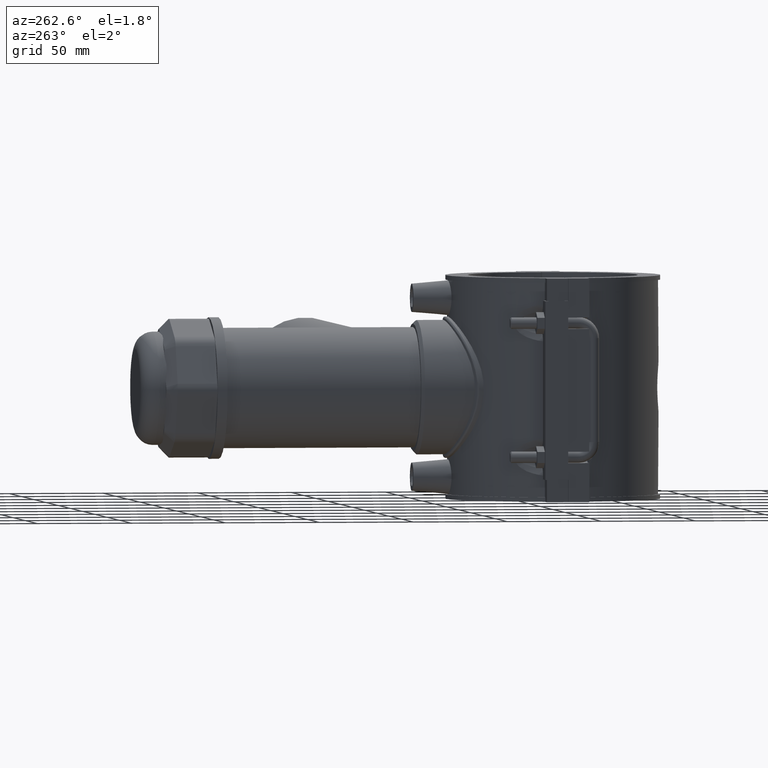
[diagram: clean part render]
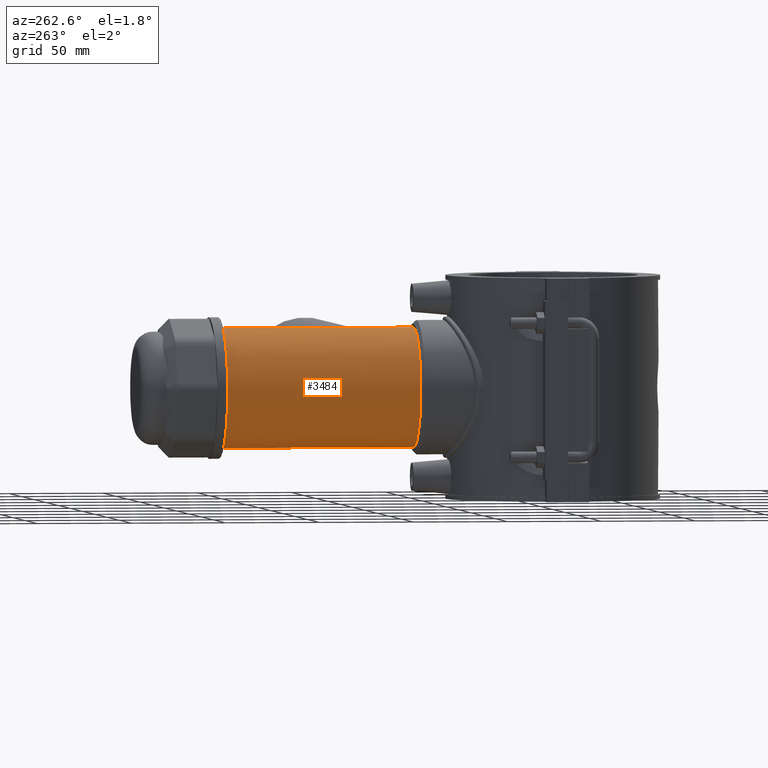
[diagram: same view with one face highlighted and labeled with its STEP entity id]
A machine part, auxiliary view. The second image highlights one B-rep face of the part: STEP entity #3484.
In plain terms, the highlighted cylindrical surface (bore or boss wall) has radius 31.7475 mm, axis along (0, 1, 0).
Its self-contained STEP definition (entity closure, byte-faithful):
#661=FACE_BOUND('',#1108,.T.);
#662=FACE_BOUND('',#1109,.T.);
#711=B_SPLINE_CURVE_WITH_KNOTS('',3,(#5197,#5198,#5199,#5200,#5201,#5202,
#5203,#5204,#5205,#5206,#5207,#5208,#5209,#5210,#5211,#5212,#5213,#5214,
#5215,#5216,#5217,#5218,#5219,#5220,#5221,#5222,#5223,#5224,#5225,#5226,
#5227,#5228,#5229,#5230,#5231,#5232,#5233,#5234,#5235,#5236,#5237,#5238,
#5239,#5240,#5241,#5242,#5243,#5244,#5245,#5246,#5247,#5248,#5249,#5250,
#5251,#5252,#5253,#5254,#5255,#5256,#5257,#5258,#5259,#5260,#5261,#5262,
#5263,#5264,#5265,#5266,#5267,#5268,#5269,#5270,#5271,#5272,#5273,#5274,
#5275,#5276,#5277,#5278,#5279,#5280,#5281,#5282,#5283,#5284,#5285,#5286),
 .UNSPECIFIED.,.T.,.F.,(4,2,2,2,2,2,2,2,2,2,2,2,2,2,2,2,2,2,2,2,2,2,2,2,
2,2,2,2,2,2,2,2,2,2,2,2,2,2,2,2,2,2,2,2,4),(0.,0.104735583560601,0.209471167121201,
0.418942334242402,0.837884668484805,1.67576933696961,2.51365400545441,3.35153867393922,
4.00208035423897,4.65262203453871,5.30316371483846,5.95370539513821,6.60424707543795,
7.2547887557377,7.90533043603744,8.55587211633719,9.39375678482199,10.2316414533068,
11.0695261217916,11.488468456034,11.6979396231552,11.8026752067158,11.9074107902764,
12.012146373837,12.1168819573976,12.3263531245188,12.7452954587612,13.583180127246,
14.4210647957308,15.2589494642156,15.9094911445153,16.5600328248151,17.2105745051148,
17.8611161854146,18.5116578657143,19.1621995460141,19.8127412263138,20.4632829066135,
21.3011675750983,22.1390522435832,22.976936912068,23.3958792463104,23.6053504134316,
23.7100859969922,23.8148215805528),.UNSPECIFIED.);
#788=CYLINDRICAL_SURFACE('',#3747,31.7475);
#884=FACE_OUTER_BOUND('',#1107,.T.);
#1107=EDGE_LOOP('',(#2511));
#1108=EDGE_LOOP('',(#2512));
#1109=EDGE_LOOP('',(#2513));
#1346=CIRCLE('',#3725,31.7475);
#1355=CIRCLE('',#3748,31.7475);
#1448=VERTEX_POINT('',#5196);
#1508=VERTEX_POINT('',#5471);
#1519=VERTEX_POINT('',#5516);
#1786=EDGE_CURVE('',#1448,#1448,#711,.T.);
#1877=EDGE_CURVE('',#1508,#1508,#1346,.T.);
#1897=EDGE_CURVE('',#1519,#1519,#1355,.T.);
#2511=ORIENTED_EDGE('',*,*,#1877,.T.);
#2512=ORIENTED_EDGE('',*,*,#1786,.T.);
#2513=ORIENTED_EDGE('',*,*,#1897,.F.);
#3484=ADVANCED_FACE('',(#884,#661,#662),#788,.T.);
#3725=AXIS2_PLACEMENT_3D('',#5472,#4202,#4203);
#3747=AXIS2_PLACEMENT_3D('',#5515,#4257,#4258);
#3748=AXIS2_PLACEMENT_3D('',#5517,#4259,#4260);
#4202=DIRECTION('center_axis',(0.,1.,3.06161699786838E-16));
#4203=DIRECTION('ref_axis',(1.,0.,0.));
#4257=DIRECTION('center_axis',(0.,1.,3.06161699786838E-16));
#4258=DIRECTION('ref_axis',(0.,0.,1.));
#4259=DIRECTION('center_axis',(0.,1.,3.06161699786838E-16));
#4260=DIRECTION('ref_axis',(1.,0.,0.));
#5196=CARTESIAN_POINT('',(3.95648281305474,109.,-31.5));
#5197=CARTESIAN_POINT('Ctrl Pts',(3.95648281305474,109.,-31.5));
#5198=CARTESIAN_POINT('Ctrl Pts',(3.95648281305474,108.650881388131,-31.5));
#5199=CARTESIAN_POINT('Ctrl Pts',(4.00185955068654,108.333509123218,-31.4943468372757));
#5200=CARTESIAN_POINT('Ctrl Pts',(4.14220008052878,107.740177746267,-31.4761964168777));
#5201=CARTESIAN_POINT('Ctrl Pts',(4.2372888561766,107.464249688265,-31.4636506557807));
#5202=CARTESIAN_POINT('Ctrl Pts',(4.56502765933543,106.672657971312,-31.4183530558806));
#5203=CARTESIAN_POINT('Ctrl Pts',(4.83732224807337,106.193762691143,-31.3782678414901));
#5204=CARTESIAN_POINT('Ctrl Pts',(5.73147397514533,104.790831276999,-31.2316833865625));
#5205=CARTESIAN_POINT('Ctrl Pts',(6.4225760036558,103.916628560852,-31.1005462101374));
#5206=CARTESIAN_POINT('Ctrl Pts',(8.66680315646233,101.225717023618,-30.5802073727426));
#5207=CARTESIAN_POINT('Ctrl Pts',(10.3574483847149,99.4086477261268,-30.0710847886582));
#5208=CARTESIAN_POINT('Ctrl Pts',(13.8856306983245,95.6760329781155,-28.6135651768442));
#5209=CARTESIAN_POINT('Ctrl Pts',(15.7185478636811,93.781900035647,-27.6660284033263));
#5210=CARTESIAN_POINT('Ctrl Pts',(19.2886958379446,90.1168963699779,-25.3066807346343));
#5211=CARTESIAN_POINT('Ctrl Pts',(21.0267142104829,88.3469298816842,-23.8946570964367));
#5212=CARTESIAN_POINT('Ctrl Pts',(23.8615324459055,85.4677368067966,-21.0154640215491));
#5213=CARTESIAN_POINT('Ctrl Pts',(25.0806244742733,84.2328265278443,-19.5638604465081));
#5214=CARTESIAN_POINT('Ctrl Pts',(27.306269795234,81.9813485177867,-16.3141040135259));
#5215=CARTESIAN_POINT('Ctrl Pts',(28.3125949076123,80.9649812721942,-14.5156559974319));
#5216=CARTESIAN_POINT('Ctrl Pts',(29.9768601517874,79.2851655148168,-10.6627961765697));
#5217=CARTESIAN_POINT('Ctrl Pts',(30.6364203792672,78.6200769159234,-8.60342754334021));
#5218=CARTESIAN_POINT('Ctrl Pts',(31.5219210774095,77.7273125339561,-4.35634144978546));
#5219=CARTESIAN_POINT('Ctrl Pts',(31.7475,77.5,-2.16847226766585));
#5220=CARTESIAN_POINT('Ctrl Pts',(31.7475,77.5,2.16847226766579));
#5221=CARTESIAN_POINT('Ctrl Pts',(31.5219210774095,77.7273125339561,4.35634144978538));
#5222=CARTESIAN_POINT('Ctrl Pts',(30.6364203792672,78.6200769159234,8.60342754334013));
#5223=CARTESIAN_POINT('Ctrl Pts',(29.9768601517874,79.2851655148168,10.6627961765696));
#5224=CARTESIAN_POINT('Ctrl Pts',(28.3125949076123,80.9649812721942,14.5156559974318));
#5225=CARTESIAN_POINT('Ctrl Pts',(27.306269795234,81.9813485177867,16.3141040135258));
#5226=CARTESIAN_POINT('Ctrl Pts',(25.0806244742734,84.2328265278442,19.563860446508));
#5227=CARTESIAN_POINT('Ctrl Pts',(23.8615324459056,85.4677368067965,21.015464021549));
#5228=CARTESIAN_POINT('Ctrl Pts',(21.0267142104831,88.3469298816841,23.8946570964366));
#5229=CARTESIAN_POINT('Ctrl Pts',(19.2886958379448,90.1168963699777,25.3066807346342));
#5230=CARTESIAN_POINT('Ctrl Pts',(15.7185478636813,93.7819000356469,27.6660284033263));
#5231=CARTESIAN_POINT('Ctrl Pts',(13.8856306983247,95.6760329781154,28.6135651768441));
#5232=CARTESIAN_POINT('Ctrl Pts',(10.3574483847151,99.4086477261266,30.0710847886582));
#5233=CARTESIAN_POINT('Ctrl Pts',(8.66680315646264,101.225717023618,30.5802073727425));
#5234=CARTESIAN_POINT('Ctrl Pts',(6.4225760036561,103.916628560852,31.1005462101374));
#5235=CARTESIAN_POINT('Ctrl Pts',(5.73147397514562,104.790831276999,31.2316833865625));
#5236=CARTESIAN_POINT('Ctrl Pts',(4.83732224807366,106.193762691143,31.3782678414901));
#5237=CARTESIAN_POINT('Ctrl Pts',(4.56502765933574,106.672657971312,31.4183530558806));
#5238=CARTESIAN_POINT('Ctrl Pts',(4.2372888561769,107.464249688265,31.4636506557807));
#5239=CARTESIAN_POINT('Ctrl Pts',(4.14220008052903,107.740177746267,31.4761964168777));
#5240=CARTESIAN_POINT('Ctrl Pts',(4.00185955068678,108.333509123217,31.4943468372757));
#5241=CARTESIAN_POINT('Ctrl Pts',(3.95648281305508,108.650881388131,31.5));
#5242=CARTESIAN_POINT('Ctrl Pts',(3.95648281305508,109.349118611869,31.5));
#5243=CARTESIAN_POINT('Ctrl Pts',(4.00185955068679,109.666490876782,31.4943468372757));
#5244=CARTESIAN_POINT('Ctrl Pts',(4.14220008052902,110.259822253733,31.4761964168777));
#5245=CARTESIAN_POINT('Ctrl Pts',(4.23728885617692,110.535750311735,31.4636506557807));
#5246=CARTESIAN_POINT('Ctrl Pts',(4.56502765933574,111.327342028688,31.4183530558806));
#5247=CARTESIAN_POINT('Ctrl Pts',(4.83732224807366,111.806237308857,31.3782678414901));
#5248=CARTESIAN_POINT('Ctrl Pts',(5.7314739751456,113.209168723001,31.2316833865625));
#5249=CARTESIAN_POINT('Ctrl Pts',(6.42257600365606,114.083371439148,31.1005462101374));
#5250=CARTESIAN_POINT('Ctrl Pts',(8.66680315646256,116.774282976382,30.5802073727426));
#5251=CARTESIAN_POINT('Ctrl Pts',(10.3574483847151,118.591352273873,30.0710847886582));
#5252=CARTESIAN_POINT('Ctrl Pts',(13.8856306983247,122.323967021885,28.6135651768441));
#5253=CARTESIAN_POINT('Ctrl Pts',(15.7185478636813,124.218099964353,27.6660284033263));
#5254=CARTESIAN_POINT('Ctrl Pts',(19.2886958379447,127.883103630022,25.3066807346343));
#5255=CARTESIAN_POINT('Ctrl Pts',(21.026714210483,129.653070118316,23.8946570964367));
#5256=CARTESIAN_POINT('Ctrl Pts',(23.8615324459055,132.532263193203,21.0154640215491));
#5257=CARTESIAN_POINT('Ctrl Pts',(25.0806244742734,133.767173472156,19.5638604465081));
#5258=CARTESIAN_POINT('Ctrl Pts',(27.306269795234,136.018651482213,16.3141040135259));
#5259=CARTESIAN_POINT('Ctrl Pts',(28.3125949076123,137.035018727806,14.5156559974319));
#5260=CARTESIAN_POINT('Ctrl Pts',(29.9768601517874,138.714834485183,10.6627961765697));
#5261=CARTESIAN_POINT('Ctrl Pts',(30.6364203792672,139.379923084077,8.60342754334021));
#5262=CARTESIAN_POINT('Ctrl Pts',(31.5219210774095,140.272687466044,4.35634144978545));
#5263=CARTESIAN_POINT('Ctrl Pts',(31.7475,140.5,2.16847226766584));
#5264=CARTESIAN_POINT('Ctrl Pts',(31.7475,140.5,-2.16847226766582));
#5265=CARTESIAN_POINT('Ctrl Pts',(31.5219210774095,140.272687466044,-4.35634144978544));
#5266=CARTESIAN_POINT('Ctrl Pts',(30.6364203792672,139.379923084077,-8.6034275433402));
#5267=CARTESIAN_POINT('Ctrl Pts',(29.9768601517874,138.714834485183,-10.6627961765697));
#5268=CARTESIAN_POINT('Ctrl Pts',(28.3125949076123,137.035018727806,-14.5156559974319));
#5269=CARTESIAN_POINT('Ctrl Pts',(27.306269795234,136.018651482213,-16.3141040135258));
#5270=CARTESIAN_POINT('Ctrl Pts',(25.0806244742733,133.767173472156,-19.5638604465081));
#5271=CARTESIAN_POINT('Ctrl Pts',(23.8615324459055,132.532263193203,-21.0154640215491));
#5272=CARTESIAN_POINT('Ctrl Pts',(21.026714210483,129.653070118316,-23.8946570964367));
#5273=CARTESIAN_POINT('Ctrl Pts',(19.2886958379447,127.883103630022,-25.3066807346343));
#5274=CARTESIAN_POINT('Ctrl Pts',(15.7185478636812,124.218099964353,-27.6660284033263));
#5275=CARTESIAN_POINT('Ctrl Pts',(13.8856306983246,122.323967021885,-28.6135651768441));
#5276=CARTESIAN_POINT('Ctrl Pts',(10.3574483847149,118.591352273873,-30.0710847886582));
#5277=CARTESIAN_POINT('Ctrl Pts',(8.66680315646238,116.774282976382,-30.5802073727426));
#5278=CARTESIAN_POINT('Ctrl Pts',(6.42257600365584,114.083371439148,-31.1005462101374));
#5279=CARTESIAN_POINT('Ctrl Pts',(5.73147397514536,113.209168723001,-31.2316833865625));
#5280=CARTESIAN_POINT('Ctrl Pts',(4.83732224807338,111.806237308857,-31.3782678414901));
#5281=CARTESIAN_POINT('Ctrl Pts',(4.56502765933545,111.327342028688,-31.4183530558806));
#5282=CARTESIAN_POINT('Ctrl Pts',(4.23728885617661,110.535750311735,-31.4636506557807));
#5283=CARTESIAN_POINT('Ctrl Pts',(4.14220008052877,110.259822253733,-31.4761964168777));
#5284=CARTESIAN_POINT('Ctrl Pts',(4.00185955068653,109.666490876782,-31.4943468372757));
#5285=CARTESIAN_POINT('Ctrl Pts',(3.95648281305476,109.349118611869,-31.5));
#5286=CARTESIAN_POINT('Ctrl Pts',(3.95648281305476,109.,-31.5));
#5471=CARTESIAN_POINT('',(0.,74.25,31.7475));
#5472=CARTESIAN_POINT('Origin',(0.,74.25,8.95522971876503E-15));
#5515=CARTESIAN_POINT('Origin',(0.,126.,2.47990976827339E-14));
#5516=CARTESIAN_POINT('',(0.,177.75,31.7475000000001));
#5517=CARTESIAN_POINT('Origin',(0.,177.75,4.06429656467028E-14));